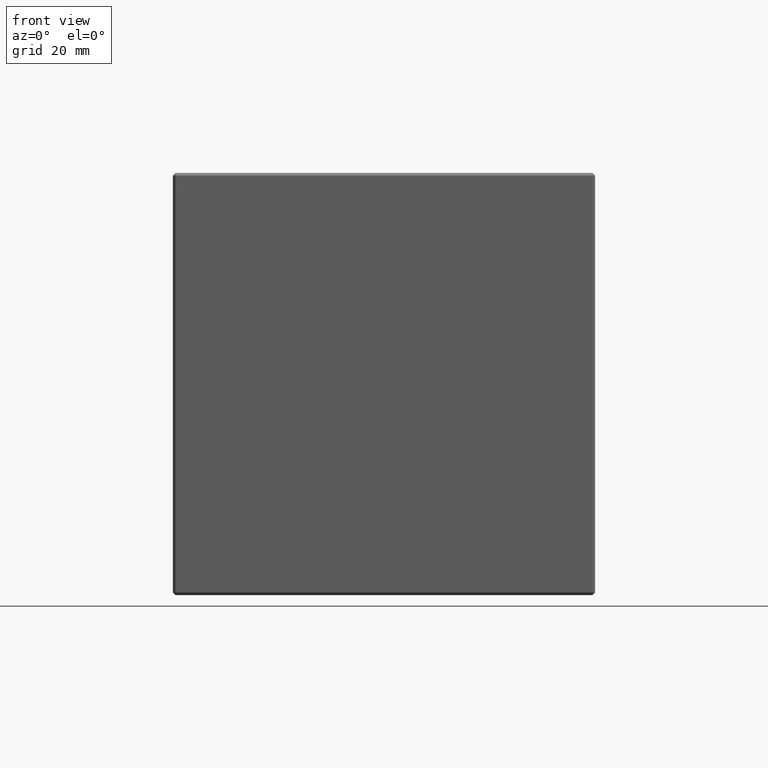
[diagram: clean part render]
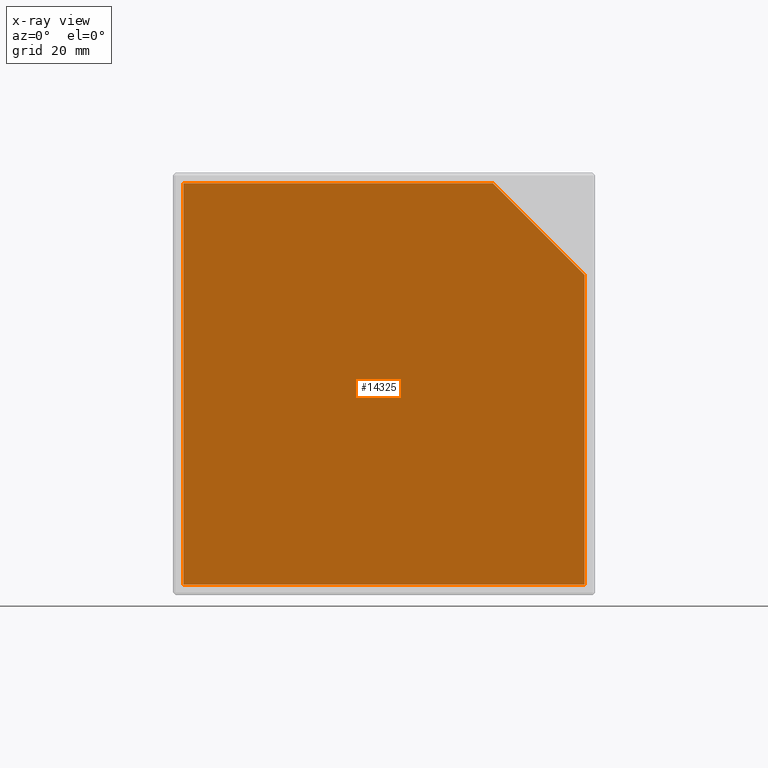
[diagram: x-ray — body ghosted, one internal face saturated and labeled with its STEP entity id]
A machine part, front view, then the same camera in x-ray: the body is ghosted and one INTERNAL B-rep face — a face not visible from any outside direction — is saturated and labeled: STEP entity #14325.
In plain terms, the highlighted planar face has unit normal (-0, -1, 0).
Its self-contained STEP definition (entity closure, byte-faithful):
#146 = DIRECTION ( 'NONE',  ( -8.673617379884035500E-017, -1.000000000000000000, 0.0000000000000000000 ) ) ;
#198 = ORIENTED_EDGE ( 'NONE', *, *, #5021, .F. ) ;
#239 = CARTESIAN_POINT ( 'NONE',  ( 37.99999999999999300, 37.99999999999998600, -38.00000000000000000 ) ) ;
#772 = FACE_OUTER_BOUND ( 'NONE', #8833, .T. ) ;
#1326 = LINE ( 'NONE', #2634, #8983 ) ;
#1354 = EDGE_CURVE ( 'NONE', #8557, #5598, #1326, .T. ) ;
#1756 = LINE ( 'NONE', #13420, #10441 ) ;
#2566 = EDGE_CURVE ( 'NONE', #6802, #9101, #2870, .T. ) ;
#2634 = CARTESIAN_POINT ( 'NONE',  ( -10.69134295108993300, 37.99999999999999300, 69.30865704891006400 ) ) ;
#2870 = LINE ( 'NONE', #10130, #13828 ) ;
#3915 = CARTESIAN_POINT ( 'NONE',  ( -38.00000000000000700, 37.99999999999999300, 40.00000000000000000 ) ) ;
#4153 = CARTESIAN_POINT ( 'NONE',  ( 37.99999999999999300, 37.99999999999999300, 20.61731409782013100 ) ) ;
#4456 = CARTESIAN_POINT ( 'NONE',  ( -38.00000000000000700, 37.99999999999999300, -38.00000000000000000 ) ) ;
#4643 = DIRECTION ( 'NONE',  ( -1.000000000000000000, 8.673617379884035500E-017, -0.0000000000000000000 ) ) ;
#4658 = DIRECTION ( 'NONE',  ( 1.000000000000000000, -8.673617379884035500E-017, 0.0000000000000000000 ) ) ;
#4716 = ORIENTED_EDGE ( 'NONE', *, *, #11422, .T. ) ;
#5021 = EDGE_CURVE ( 'NONE', #8557, #6802, #1756, .T. ) ;
#5598 = VERTEX_POINT ( 'NONE', #12439 ) ;
#5798 = CARTESIAN_POINT ( 'NONE',  ( -40.00000000000000700, 37.99999999999999300, 40.00000000000000000 ) ) ;
#5982 = VECTOR ( 'NONE', #7204, 1000.000000000000000 ) ;
#6097 = ORIENTED_EDGE ( 'NONE', *, *, #1354, .T. ) ;
#6208 = CARTESIAN_POINT ( 'NONE',  ( -38.00000000000000700, 37.99999999999999300, 38.00000000000000000 ) ) ;
#6719 = PLANE ( 'NONE',  #10147 ) ;
#6746 = DIRECTION ( 'NONE',  ( 0.0000000000000000000, 0.0000000000000000000, -1.000000000000000000 ) ) ;
#6749 = ORIENTED_EDGE ( 'NONE', *, *, #7007, .T. ) ;
#6802 = VERTEX_POINT ( 'NONE', #239 ) ;
#7007 = EDGE_CURVE ( 'NONE', #5598, #8233, #12062, .T. ) ;
#7204 = DIRECTION ( 'NONE',  ( -1.000000000000000000, 8.673617379884035500E-017, 0.0000000000000000000 ) ) ;
#8233 = VERTEX_POINT ( 'NONE', #6208 ) ;
#8557 = VERTEX_POINT ( 'NONE', #4153 ) ;
#8833 = EDGE_LOOP ( 'NONE', ( #198, #6097, #6749, #4716, #8864 ) ) ;
#8864 = ORIENTED_EDGE ( 'NONE', *, *, #2566, .F. ) ;
#8983 = VECTOR ( 'NONE', #11527, 1000.000000000000000 ) ;
#9101 = VERTEX_POINT ( 'NONE', #4456 ) ;
#10130 = CARTESIAN_POINT ( 'NONE',  ( -40.00000000000000700, 37.99999999999999300, -38.00000000000000000 ) ) ;
#10147 = AXIS2_PLACEMENT_3D ( 'NONE', #5798, #146, #4658 ) ;
#10441 = VECTOR ( 'NONE', #6746, 1000.000000000000000 ) ;
#11422 = EDGE_CURVE ( 'NONE', #8233, #9101, #14373, .T. ) ;
#11527 = DIRECTION ( 'NONE',  ( -0.7071067811865474600, 2.207942520024057700E-017, 0.7071067811865475700 ) ) ;
#11762 = DIRECTION ( 'NONE',  ( 0.0000000000000000000, 0.0000000000000000000, -1.000000000000000000 ) ) ;
#12062 = LINE ( 'NONE', #12730, #5982 ) ;
#12439 = CARTESIAN_POINT ( 'NONE',  ( 20.61731409782013800, 37.99999999999999300, 38.00000000000000000 ) ) ;
#12730 = CARTESIAN_POINT ( 'NONE',  ( -40.00000000000000700, 37.99999999999999300, 38.00000000000000000 ) ) ;
#13420 = CARTESIAN_POINT ( 'NONE',  ( 37.99999999999999300, 37.99999999999998600, 40.00000000000000000 ) ) ;
#13686 = VECTOR ( 'NONE', #11762, 1000.000000000000000 ) ;
#13828 = VECTOR ( 'NONE', #4643, 1000.000000000000000 ) ;
#14325 = ADVANCED_FACE ( 'NONE', ( #772 ), #6719, .T. ) ;
#14373 = LINE ( 'NONE', #3915, #13686 ) ;